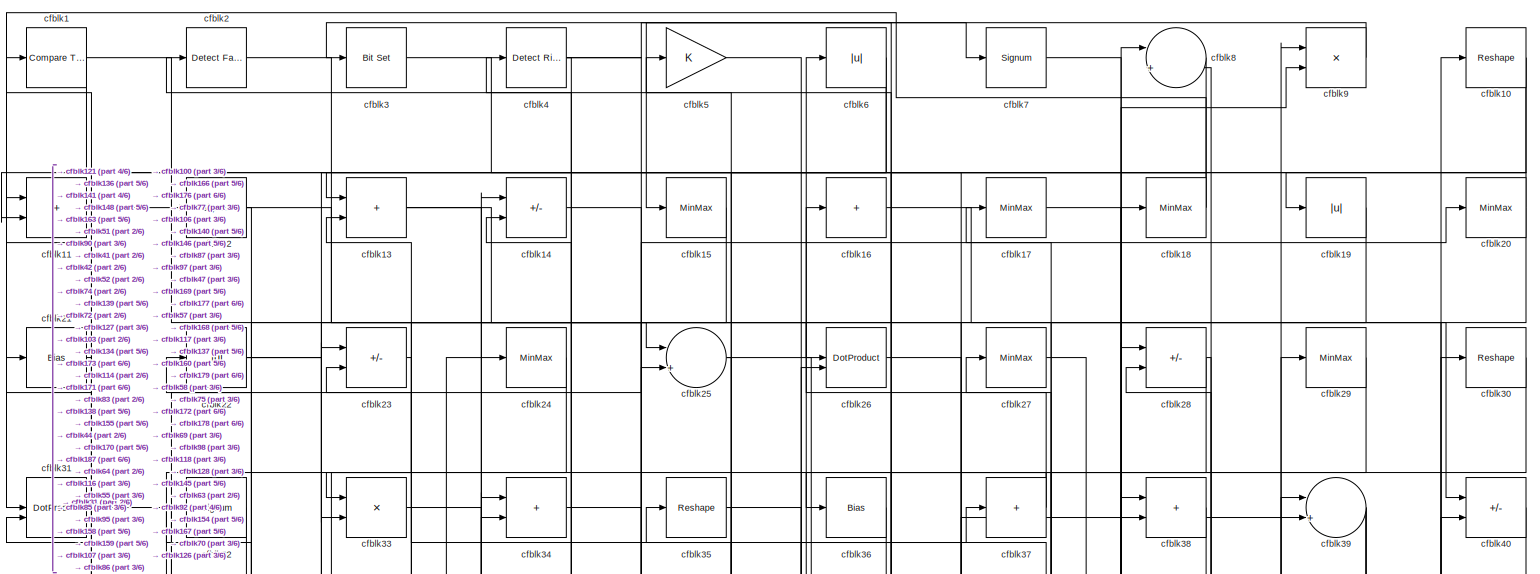
[diagram: root canvas - part 1/6, full width, top band]
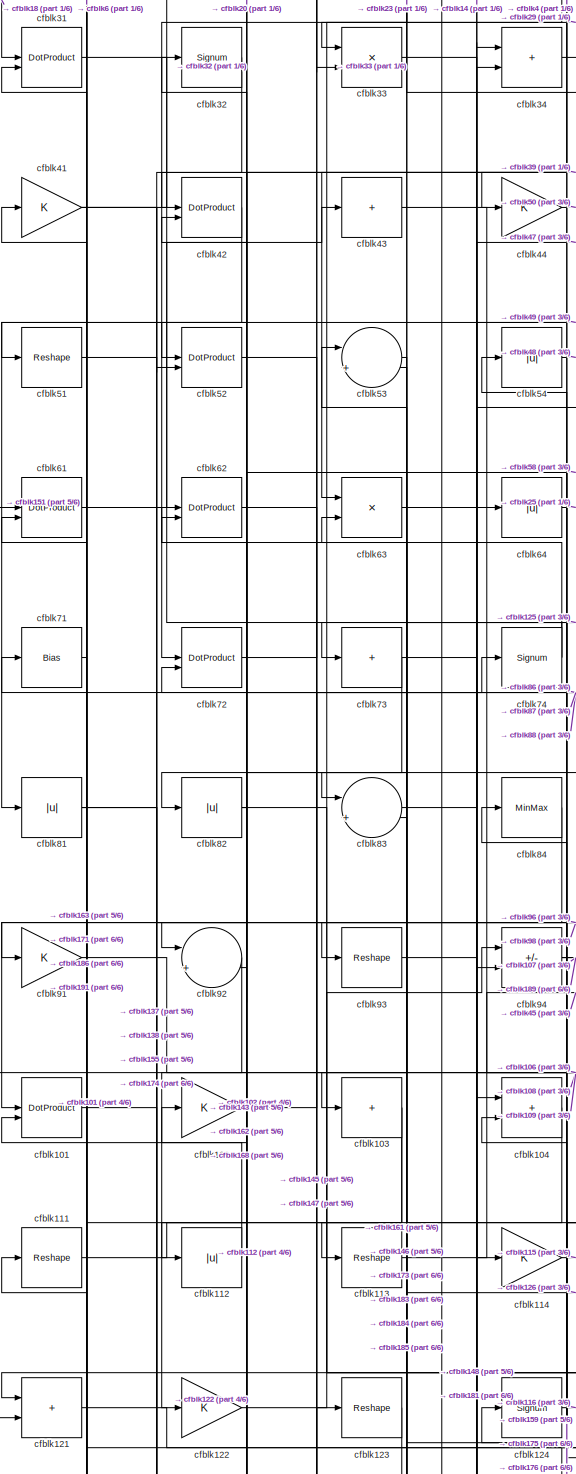
[diagram: root canvas - part 2/6, middle left region]
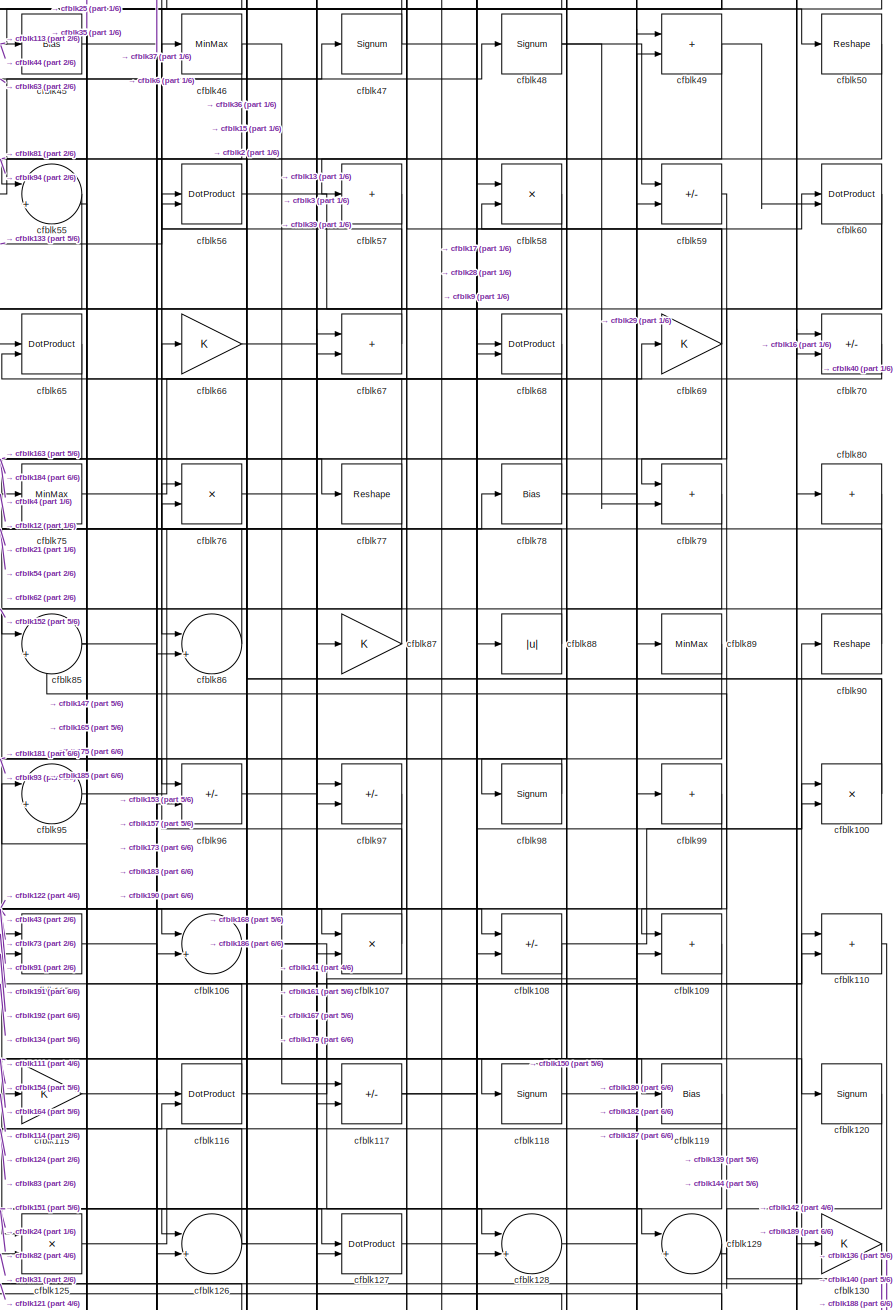
[diagram: root canvas - part 3/6, middle right region]
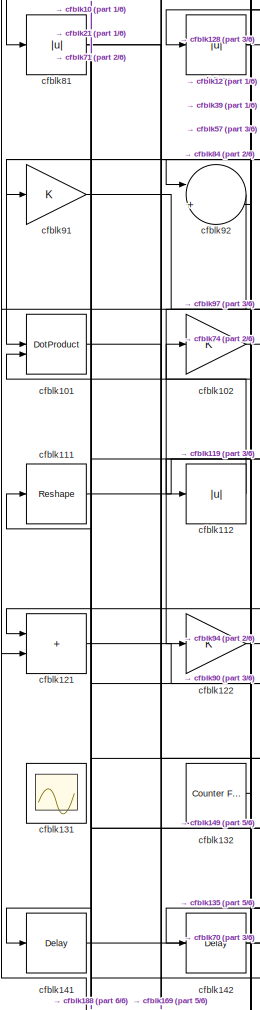
[diagram: root canvas - part 4/6, middle left region]
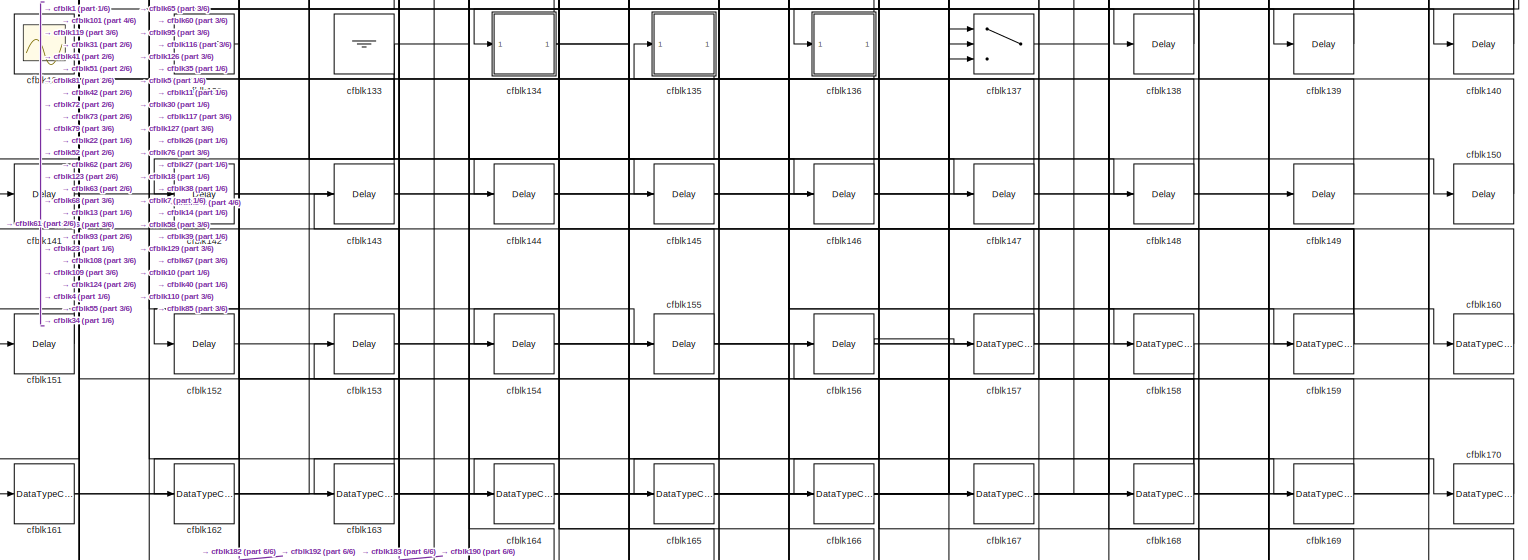
[diagram: root canvas - part 5/6, full width, bottom band]
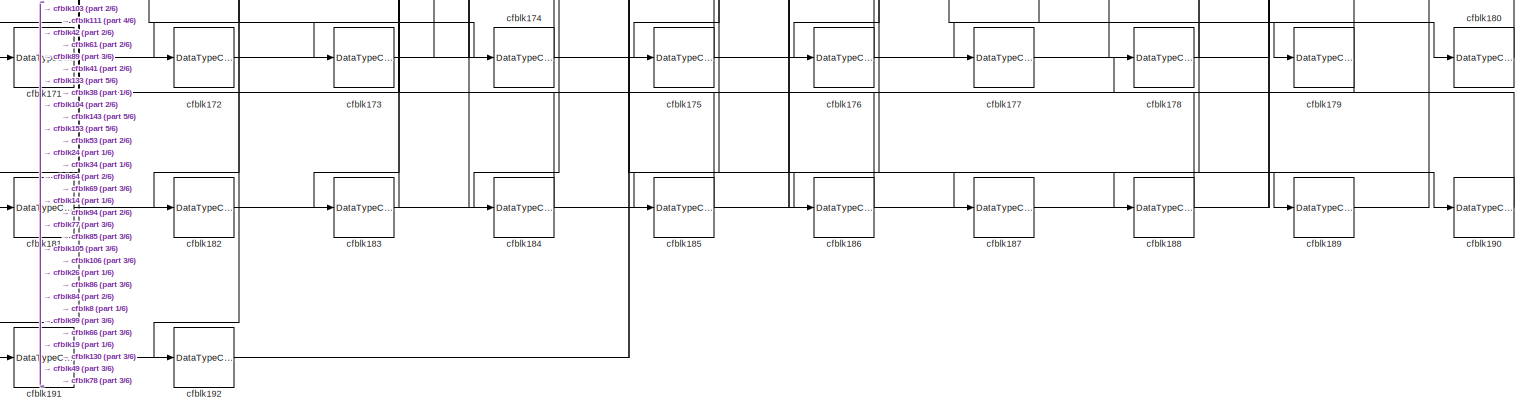
[diagram: root canvas - part 6/6, full width, bottom band]
MODEL slx_e3b1f6928810
KIND model
CONFIG AbsTol = auto
CONFIG EnableMultiTasking = off
CONFIG FixedStep = auto
CONFIG MaxStep = auto
CONFIG MinStep = auto
CONFIG RelTol = 1e-3
CONFIG SampleTimeConstraint = Unconstrained
CONFIG SolverName = VariableStepAuto
CONFIG StartTime = 0.0
CONFIG StopTime = 10.0
BLOCK [Reference] cfblk1  REF=hdlsllib/Logic and Bit
Operations/Compare
To Zero
  SourceBlock = hdlsllib/Logic and Bit\nOperations/Compare\nTo Zero
  SourceType = Compare To Zero
BLOCK [Reshape] cfblk10
BLOCK [Product] cfblk100
  Inputs = */
  RndMeth = Zero
  SaturateOnIntegerOverflow = on
BLOCK [DotProduct] cfblk101
  OutDataTypeStr = Inherit: Inherit via internal rule
BLOCK [Gain] cfblk102
BLOCK [Sum] cfblk103
  IconShape = rectangular
  Inputs = +
BLOCK [Sum] cfblk104
  IconShape = rectangular
BLOCK [Product] cfblk105
  Inputs = */
  RndMeth = Zero
  SaturateOnIntegerOverflow = on
BLOCK [Sum] cfblk106
  Inputs = |++
BLOCK [Product] cfblk107
  Inputs = */
  RndMeth = Zero
  SaturateOnIntegerOverflow = on
BLOCK [Sum] cfblk108
  IconShape = rectangular
  Inputs = +-
BLOCK [Sum] cfblk109
  IconShape = rectangular
BLOCK [Sum] cfblk11
  IconShape = rectangular
BLOCK [Sum] cfblk110
  IconShape = rectangular
BLOCK [Reshape] cfblk111
BLOCK [Abs] cfblk112
  SaturateOnIntegerOverflow = off
BLOCK [Reshape] cfblk113
BLOCK [Gain] cfblk114
BLOCK [Gain] cfblk115
BLOCK [DotProduct] cfblk116
  OutDataTypeStr = Inherit: Inherit via internal rule
BLOCK [Sum] cfblk117
  IconShape = rectangular
  Inputs = +-
BLOCK [Signum] cfblk118
BLOCK [Bias] cfblk119
  Bias = 0.0
  SaturateOnIntegerOverflow = off
BLOCK [Signum] cfblk12
BLOCK [Signum] cfblk120
BLOCK [Sum] cfblk121
  IconShape = rectangular
BLOCK [Gain] cfblk122
BLOCK [Reshape] cfblk123
BLOCK [Signum] cfblk124
BLOCK [Product] cfblk125
  Inputs = */
  RndMeth = Zero
  SaturateOnIntegerOverflow = on
BLOCK [Sum] cfblk126
  Inputs = |++
BLOCK [DotProduct] cfblk127
  OutDataTypeStr = Inherit: Inherit via internal rule
BLOCK [Sum] cfblk128
  Inputs = |++
BLOCK [Sum] cfblk129
  Inputs = |++
BLOCK [Sum] cfblk13
  IconShape = rectangular
BLOCK [Gain] cfblk130
BLOCK [Scope] cfblk131
  Floating = on
  NumInputPorts = 1
  ScopeSpecificationString = Simulink.scopes.TimeScopeBlockCfg('CurrentConfiguration', extmgr.ConfigurationSet(extmgr.Configuration('Core','General UI',true,'FigureColor',[0.156862745098039 0.156862745098039 0.156862745098039]),extmgr.Configuration('Core','Source UI',true),extmgr.Configuration('Sources','WiredSimulink',true,'DataLoggingVariableName','ScopeData1','DataLoggingSaveFormat','StructureWithTime','DataLoggingLimitDat...<+2713ch>
BLOCK [Reference] cfblk132  REF=hdlsllib/Sources/Counter
Free-Running
  SourceBlock = hdlsllib/Sources/Counter\nFree-Running
  SourceType = Counter Free-Running
BLOCK [Ground] cfblk133
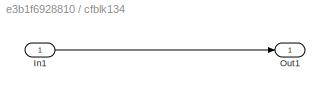
BLOCK [SubSystem] cfblk134
  LibrarySourceBlock = hdlsllib/Ports &\nSubsystems/Subsystem
BLOCK [Inport] cfblk134/In1
BLOCK [Outport] cfblk134/Out1
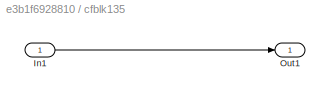
BLOCK [SubSystem] cfblk135
  LibrarySourceBlock = hdlsllib/Ports &\nSubsystems/Subsystem
BLOCK [Inport] cfblk135/In1
BLOCK [Outport] cfblk135/Out1
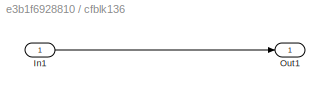
BLOCK [SubSystem] cfblk136
  LibrarySourceBlock = hdlsllib/Ports &\nSubsystems/Subsystem
BLOCK [Inport] cfblk136/In1
BLOCK [Outport] cfblk136/Out1
BLOCK [Switch] cfblk137
  InputSameDT = off
  SaturateOnIntegerOverflow = off
BLOCK [Delay] cfblk138
  InputPortMap = u0
  SampleTime = 1
BLOCK [Delay] cfblk139
  InputPortMap = u0
  SampleTime = 1
BLOCK [Sum] cfblk14
  IconShape = rectangular
  Inputs = +-
BLOCK [Delay] cfblk140
  InputPortMap = u0
  SampleTime = 1
BLOCK [Delay] cfblk141
  InputPortMap = u0
  SampleTime = 1
BLOCK [Delay] cfblk142
  InputPortMap = u0
  SampleTime = 1
BLOCK [Delay] cfblk143
  InputPortMap = u0
  SampleTime = 1
BLOCK [Delay] cfblk144
  InputPortMap = u0
  SampleTime = 1
BLOCK [Delay] cfblk145
  InputPortMap = u0
  SampleTime = 1
BLOCK [Delay] cfblk146
  InputPortMap = u0
  SampleTime = 1
BLOCK [Delay] cfblk147
  InputPortMap = u0
  SampleTime = 1
BLOCK [Delay] cfblk148
  InputPortMap = u0
  SampleTime = 1
BLOCK [Delay] cfblk149
  InputPortMap = u0
  SampleTime = 1
BLOCK [MinMax] cfblk15
BLOCK [Delay] cfblk150
  InputPortMap = u0
  SampleTime = 1
BLOCK [Delay] cfblk151
  InputPortMap = u0
  SampleTime = 1
BLOCK [Delay] cfblk152
  InputPortMap = u0
  SampleTime = 1
BLOCK [Delay] cfblk153
  InputPortMap = u0
  SampleTime = 1
BLOCK [Delay] cfblk154
  InputPortMap = u0
  SampleTime = 1
BLOCK [Delay] cfblk155
  InputPortMap = u0
  SampleTime = 1
BLOCK [Delay] cfblk156
  InputPortMap = u0
  SampleTime = 1
BLOCK [DataTypeConversion] cfblk157
  OutDataTypeStr = uint8
  RndMeth = Floor
  SaturateOnIntegerOverflow = off
BLOCK [DataTypeConversion] cfblk158
  OutDataTypeStr = uint8
  RndMeth = Floor
  SaturateOnIntegerOverflow = off
BLOCK [DataTypeConversion] cfblk159
  RndMeth = Floor
  SaturateOnIntegerOverflow = off
BLOCK [Sum] cfblk16
  IconShape = rectangular
  Inputs = +
BLOCK [DataTypeConversion] cfblk160
  OutDataTypeStr = uint8
  RndMeth = Floor
  SaturateOnIntegerOverflow = off
BLOCK [DataTypeConversion] cfblk161
  RndMeth = Floor
  SaturateOnIntegerOverflow = off
BLOCK [DataTypeConversion] cfblk162
  OutDataTypeStr = uint8
  RndMeth = Floor
  SaturateOnIntegerOverflow = off
BLOCK [DataTypeConversion] cfblk163
  RndMeth = Floor
  SaturateOnIntegerOverflow = off
BLOCK [DataTypeConversion] cfblk164
  OutDataTypeStr = uint8
  RndMeth = Floor
  SaturateOnIntegerOverflow = off
BLOCK [DataTypeConversion] cfblk165
  OutDataTypeStr = uint8
  RndMeth = Floor
  SaturateOnIntegerOverflow = off
BLOCK [DataTypeConversion] cfblk166
  RndMeth = Floor
  SaturateOnIntegerOverflow = off
BLOCK [DataTypeConversion] cfblk167
  OutDataTypeStr = uint8
  RndMeth = Floor
  SaturateOnIntegerOverflow = off
BLOCK [DataTypeConversion] cfblk168
  RndMeth = Floor
  SaturateOnIntegerOverflow = off
BLOCK [DataTypeConversion] cfblk169
  OutDataTypeStr = uint8
  RndMeth = Floor
  SaturateOnIntegerOverflow = off
BLOCK [MinMax] cfblk17
BLOCK [DataTypeConversion] cfblk170
  OutDataTypeStr = uint8
  RndMeth = Floor
  SaturateOnIntegerOverflow = off
BLOCK [DataTypeConversion] cfblk171
  OutDataTypeStr = uint8
  RndMeth = Floor
  SaturateOnIntegerOverflow = off
BLOCK [DataTypeConversion] cfblk172
  OutDataTypeStr = uint8
  RndMeth = Floor
  SaturateOnIntegerOverflow = off
BLOCK [DataTypeConversion] cfblk173
  RndMeth = Floor
  SaturateOnIntegerOverflow = off
BLOCK [DataTypeConversion] cfblk174
  OutDataTypeStr = uint8
  RndMeth = Floor
  SaturateOnIntegerOverflow = off
BLOCK [DataTypeConversion] cfblk175
  OutDataTypeStr = uint8
  RndMeth = Floor
  SaturateOnIntegerOverflow = off
BLOCK [DataTypeConversion] cfblk176
  OutDataTypeStr = uint8
  RndMeth = Floor
  SaturateOnIntegerOverflow = off
BLOCK [DataTypeConversion] cfblk177
  OutDataTypeStr = uint8
  RndMeth = Floor
  SaturateOnIntegerOverflow = off
BLOCK [DataTypeConversion] cfblk178
  OutDataTypeStr = uint8
  RndMeth = Floor
  SaturateOnIntegerOverflow = off
BLOCK [DataTypeConversion] cfblk179
  RndMeth = Floor
  SaturateOnIntegerOverflow = off
BLOCK [MinMax] cfblk18
BLOCK [DataTypeConversion] cfblk180
  OutDataTypeStr = uint8
  RndMeth = Floor
  SaturateOnIntegerOverflow = off
BLOCK [DataTypeConversion] cfblk181
  RndMeth = Floor
  SaturateOnIntegerOverflow = off
BLOCK [DataTypeConversion] cfblk182
  OutDataTypeStr = uint8
  RndMeth = Floor
  SaturateOnIntegerOverflow = off
BLOCK [DataTypeConversion] cfblk183
  RndMeth = Floor
  SaturateOnIntegerOverflow = off
BLOCK [DataTypeConversion] cfblk184
  OutDataTypeStr = uint8
  RndMeth = Floor
  SaturateOnIntegerOverflow = off
BLOCK [DataTypeConversion] cfblk185
  OutDataTypeStr = uint8
  RndMeth = Floor
  SaturateOnIntegerOverflow = off
BLOCK [DataTypeConversion] cfblk186
  OutDataTypeStr = uint8
  RndMeth = Floor
  SaturateOnIntegerOverflow = off
BLOCK [DataTypeConversion] cfblk187
  OutDataTypeStr = uint8
  RndMeth = Floor
  SaturateOnIntegerOverflow = off
BLOCK [DataTypeConversion] cfblk188
  OutDataTypeStr = uint8
  RndMeth = Floor
  SaturateOnIntegerOverflow = off
BLOCK [DataTypeConversion] cfblk189
  OutDataTypeStr = uint8
  RndMeth = Floor
  SaturateOnIntegerOverflow = off
BLOCK [Abs] cfblk19
  SaturateOnIntegerOverflow = off
BLOCK [DataTypeConversion] cfblk190
  OutDataTypeStr = uint8
  RndMeth = Floor
  SaturateOnIntegerOverflow = off
BLOCK [DataTypeConversion] cfblk191
  OutDataTypeStr = uint8
  RndMeth = Floor
  SaturateOnIntegerOverflow = off
BLOCK [DataTypeConversion] cfblk192
  OutDataTypeStr = uint8
  RndMeth = Floor
  SaturateOnIntegerOverflow = off
BLOCK [Reference] cfblk2  REF=hdlsllib/Logic and Bit
Operations/Detect Fall
Negative
  SourceBlock = hdlsllib/Logic and Bit\nOperations/Detect Fall\nNegative
  SourceType = Detect Fall Negative
BLOCK [MinMax] cfblk20
BLOCK [Bias] cfblk21
  Bias = 0.0
  SaturateOnIntegerOverflow = off
BLOCK [Abs] cfblk22
  SaturateOnIntegerOverflow = off
BLOCK [Sum] cfblk23
  IconShape = rectangular
  Inputs = +-
BLOCK [MinMax] cfblk24
BLOCK [Sum] cfblk25
  Inputs = |++
BLOCK [DotProduct] cfblk26
  OutDataTypeStr = Inherit: Inherit via internal rule
BLOCK [MinMax] cfblk27
BLOCK [Sum] cfblk28
  IconShape = rectangular
  Inputs = +-
BLOCK [MinMax] cfblk29
BLOCK [Reference] cfblk3  REF=simulink/Logic and Bit
Operations/Bit Set
  LibrarySourceBlock = hdlsllib/Logic and Bit\nOperations/Bit Set
  SourceBlock = simulink/Logic and Bit\nOperations/Bit Set
  SourceType = Bit Set
BLOCK [Reshape] cfblk30
BLOCK [DotProduct] cfblk31
  OutDataTypeStr = Inherit: Inherit via internal rule
BLOCK [Signum] cfblk32
BLOCK [Product] cfblk33
  Inputs = */
  RndMeth = Zero
  SaturateOnIntegerOverflow = on
BLOCK [Sum] cfblk34
  IconShape = rectangular
BLOCK [Reshape] cfblk35
BLOCK [Bias] cfblk36
  Bias = 0.0
  SaturateOnIntegerOverflow = off
BLOCK [Sum] cfblk37
  IconShape = rectangular
  Inputs = +
BLOCK [Sum] cfblk38
  IconShape = rectangular
BLOCK [Sum] cfblk39
  Inputs = |++
BLOCK [Reference] cfblk4  REF=hdlsllib/Logic and Bit
Operations/Detect Rise
Positive
  SourceBlock = hdlsllib/Logic and Bit\nOperations/Detect Rise\nPositive
  SourceType = Detect Rise Positive
BLOCK [Sum] cfblk40
  IconShape = rectangular
  Inputs = +-
BLOCK [Gain] cfblk41
BLOCK [DotProduct] cfblk42
  OutDataTypeStr = Inherit: Inherit via internal rule
BLOCK [Sum] cfblk43
  IconShape = rectangular
  Inputs = +
BLOCK [Gain] cfblk44
BLOCK [Bias] cfblk45
  Bias = 0.0
  SaturateOnIntegerOverflow = off
BLOCK [MinMax] cfblk46
BLOCK [Signum] cfblk47
BLOCK [Signum] cfblk48
BLOCK [Sum] cfblk49
  IconShape = rectangular
BLOCK [Gain] cfblk5
BLOCK [Reshape] cfblk50
BLOCK [Reshape] cfblk51
BLOCK [DotProduct] cfblk52
  OutDataTypeStr = Inherit: Inherit via internal rule
BLOCK [Sum] cfblk53
  Inputs = |++
BLOCK [Abs] cfblk54
  SaturateOnIntegerOverflow = off
BLOCK [Sum] cfblk55
  Inputs = |++
BLOCK [DotProduct] cfblk56
  OutDataTypeStr = Inherit: Inherit via internal rule
BLOCK [Sum] cfblk57
  IconShape = rectangular
  Inputs = +
BLOCK [Product] cfblk58
  Inputs = */
  RndMeth = Zero
  SaturateOnIntegerOverflow = on
BLOCK [Sum] cfblk59
  IconShape = rectangular
  Inputs = +-
BLOCK [Abs] cfblk6
  SaturateOnIntegerOverflow = off
BLOCK [DotProduct] cfblk60
  OutDataTypeStr = Inherit: Inherit via internal rule
BLOCK [DotProduct] cfblk61
  OutDataTypeStr = Inherit: Inherit via internal rule
BLOCK [DotProduct] cfblk62
  OutDataTypeStr = Inherit: Inherit via internal rule
BLOCK [Product] cfblk63
  Inputs = */
  RndMeth = Zero
  SaturateOnIntegerOverflow = on
BLOCK [Abs] cfblk64
  SaturateOnIntegerOverflow = off
BLOCK [DotProduct] cfblk65
  OutDataTypeStr = Inherit: Inherit via internal rule
BLOCK [Gain] cfblk66
BLOCK [Sum] cfblk67
  IconShape = rectangular
BLOCK [DotProduct] cfblk68
  OutDataTypeStr = Inherit: Inherit via internal rule
BLOCK [Gain] cfblk69
BLOCK [Signum] cfblk7
BLOCK [Sum] cfblk70
  IconShape = rectangular
  Inputs = +-
BLOCK [Bias] cfblk71
  Bias = 0.0
  SaturateOnIntegerOverflow = off
BLOCK [DotProduct] cfblk72
  OutDataTypeStr = Inherit: Inherit via internal rule
BLOCK [Sum] cfblk73
  IconShape = rectangular
  Inputs = +
BLOCK [Signum] cfblk74
BLOCK [MinMax] cfblk75
BLOCK [Product] cfblk76
  Inputs = */
  RndMeth = Zero
  SaturateOnIntegerOverflow = on
BLOCK [Reshape] cfblk77
BLOCK [Bias] cfblk78
  Bias = 0.0
  SaturateOnIntegerOverflow = off
BLOCK [Sum] cfblk79
  IconShape = rectangular
BLOCK [Sum] cfblk8
  Inputs = |++
BLOCK [Sum] cfblk80
  IconShape = rectangular
  Inputs = +
BLOCK [Abs] cfblk81
  SaturateOnIntegerOverflow = off
BLOCK [Abs] cfblk82
  SaturateOnIntegerOverflow = off
BLOCK [Sum] cfblk83
  Inputs = |++
BLOCK [MinMax] cfblk84
BLOCK [Sum] cfblk85
  Inputs = |++
BLOCK [Sum] cfblk86
  Inputs = |++
BLOCK [Gain] cfblk87
BLOCK [Abs] cfblk88
  SaturateOnIntegerOverflow = off
BLOCK [MinMax] cfblk89
BLOCK [Product] cfblk9
  Inputs = */
  RndMeth = Zero
  SaturateOnIntegerOverflow = on
BLOCK [Reshape] cfblk90
BLOCK [Gain] cfblk91
BLOCK [Sum] cfblk92
  Inputs = |++
BLOCK [Reshape] cfblk93
BLOCK [Sum] cfblk94
  IconShape = rectangular
  Inputs = +-
BLOCK [Sum] cfblk95
  Inputs = |++
BLOCK [Sum] cfblk96
  IconShape = rectangular
  Inputs = +-
BLOCK [Sum] cfblk97
  IconShape = rectangular
  Inputs = +-
BLOCK [Signum] cfblk98
BLOCK [Sum] cfblk99
  IconShape = rectangular
  Inputs = +
NET cfblk100:1 -> cfblk2:1, cfblk76:1
LINE cfblk101:1 -> cfblk169:1
LINE cfblk102:1 -> cfblk74:1
NET cfblk103:1 -> cfblk113:1, cfblk191:1
LINE cfblk104:1 -> cfblk173:1
LINE cfblk105:1 -> cfblk190:1
NET cfblk106:1 -> cfblk129:1, cfblk39:2
LINE cfblk107:1 -> cfblk6:1
NET cfblk108:1 -> cfblk100:1, cfblk154:1
LINE cfblk109:1 -> cfblk164:1
NET cfblk10:1 -> cfblk121:1, cfblk33:2
LINE cfblk110:1 -> cfblk136:1
LINE cfblk111:1 -> cfblk119:1
LINE cfblk112:1 -> cfblk71:1
LINE cfblk113:1 -> cfblk45:1
LINE cfblk114:1 -> cfblk115:1
LINE cfblk115:1 -> cfblk110:2
NET cfblk116:1 -> cfblk35:1, cfblk59:2
NET cfblk117:1 -> cfblk100:2, cfblk9:2
LINE cfblk118:1 -> cfblk9:1
LINE cfblk119:1 -> cfblk151:1
LINE cfblk11:1 -> cfblk12:1
LINE cfblk120:1 -> cfblk129:2
LINE cfblk121:1 -> cfblk90:1
LINE cfblk122:1 -> cfblk94:1
LINE cfblk123:1 -> cfblk161:1
LINE cfblk124:1 -> cfblk116:2
LINE cfblk125:1 -> cfblk80:1
NET cfblk126:1 -> cfblk56:1, cfblk67:2, cfblk83:2
LINE cfblk127:1 -> cfblk60:1
LINE cfblk128:1 -> cfblk29:1
LINE cfblk129:1 -> cfblk144:1
NET cfblk12:1 -> cfblk75:1, cfblk92:2
LINE cfblk130:1 -> cfblk188:1
LINE cfblk132:1 -> cfblk102:1
NET cfblk133:1 -> cfblk182:1, cfblk192:1, cfblk56:2
LINE cfblk134/In1:1 -> cfblk134/Out1:1
NET cfblk134:1 -> cfblk110:1, cfblk150:1, cfblk23:2
LINE cfblk135/In1:1 -> cfblk135/Out1:1
LINE cfblk135:1 -> cfblk142:1
LINE cfblk136/In1:1 -> cfblk136/Out1:1
NET cfblk136:1 -> cfblk11:1, cfblk135:1
LINE cfblk137:1 -> cfblk18:1
LINE cfblk138:1 -> cfblk14:2
LINE cfblk139:1 -> cfblk67:1
NET cfblk13:1 -> cfblk146:1, cfblk87:1
LINE cfblk140:1 -> cfblk85:2
LINE cfblk141:1 -> cfblk97:1
LINE cfblk142:1 -> cfblk70:1
LINE cfblk143:1 -> cfblk72:2
LINE cfblk144:1 -> cfblk65:1
LINE cfblk145:1 -> cfblk39:1
LINE cfblk146:1 -> cfblk63:2
LINE cfblk147:1 -> cfblk95:1
LINE cfblk148:1 -> cfblk1:1
LINE cfblk149:1 -> cfblk101:2
LINE cfblk14:1 -> cfblk187:1
LINE cfblk150:1 -> cfblk58:2
LINE cfblk151:1 -> cfblk61:1
LINE cfblk152:1 -> cfblk108:2
LINE cfblk153:1 -> cfblk126:2
LINE cfblk154:1 -> cfblk40:2
LINE cfblk155:1 -> cfblk4:1
LINE cfblk156:1 -> cfblk157:1
LINE cfblk157:1 -> cfblk116:1
LINE cfblk158:1 -> cfblk156:1
NET cfblk159:1 -> cfblk124:1, cfblk137:1, cfblk41:1
LINE cfblk15:1 -> cfblk33:1
LINE cfblk160:1 -> cfblk5:1
NET cfblk161:1 -> cfblk127:2, cfblk137:3
LINE cfblk162:1 -> cfblk123:1
NET cfblk163:1 -> cfblk117:2, cfblk31:2, cfblk38:2
LINE cfblk164:1 -> cfblk68:1
LINE cfblk165:1 -> cfblk68:2
NET cfblk166:1 -> cfblk10:1, cfblk149:1
LINE cfblk167:1 -> cfblk30:1
NET cfblk168:1 -> cfblk42:2, cfblk76:2
LINE cfblk169:1 -> cfblk27:1
LINE cfblk16:1 -> cfblk70:2
LINE cfblk170:1 -> cfblk22:1
LINE cfblk171:1 -> cfblk34:1
LINE cfblk172:1 -> cfblk34:2
NET cfblk173:1 -> cfblk24:1, cfblk26:2, cfblk49:1
LINE cfblk174:1 -> cfblk104:1
LINE cfblk175:1 -> cfblk104:2
LINE cfblk176:1 -> cfblk84:1
LINE cfblk177:1 -> cfblk8:1
LINE cfblk178:1 -> cfblk8:2
NET cfblk179:1 -> cfblk178:1, cfblk38:1
LINE cfblk17:1 -> cfblk58:1
LINE cfblk180:1 -> cfblk66:1
NET cfblk181:1 -> cfblk49:2, cfblk64:1
LINE cfblk182:1 -> cfblk89:1
NET cfblk183:1 -> cfblk106:2, cfblk153:1, cfblk86:2
LINE cfblk184:1 -> cfblk53:1
LINE cfblk185:1 -> cfblk53:2
LINE cfblk186:1 -> cfblk61:2
LINE cfblk187:1 -> cfblk99:1
LINE cfblk188:1 -> cfblk111:1
LINE cfblk189:1 -> cfblk130:1
NET cfblk18:1 -> cfblk13:1, cfblk31:1
LINE cfblk190:1 -> cfblk143:1
LINE cfblk191:1 -> cfblk105:1
LINE cfblk192:1 -> cfblk105:2
LINE cfblk19:1 -> cfblk177:1
NET cfblk1:1 -> cfblk11:2, cfblk40:1
NET cfblk20:1 -> cfblk19:1, cfblk52:1
LINE cfblk21:1 -> cfblk141:1
NET cfblk22:1 -> cfblk139:1, cfblk26:1
LINE cfblk23:1 -> cfblk103:1
LINE cfblk24:1 -> cfblk127:1
NET cfblk25:1 -> cfblk107:2, cfblk85:1
LINE cfblk26:1 -> cfblk140:1
LINE cfblk27:1 -> cfblk168:1
NET cfblk28:1 -> cfblk57:1, cfblk98:1
LINE cfblk29:1 -> cfblk72:1
LINE cfblk2:1 -> cfblk25:1
LINE cfblk30:1 -> cfblk166:1
LINE cfblk31:1 -> cfblk125:2
LINE cfblk32:1 -> cfblk42:1
LINE cfblk33:1 -> cfblk114:1
LINE cfblk34:1 -> cfblk170:1
NET cfblk35:1 -> cfblk158:1, cfblk55:1
LINE cfblk36:1 -> cfblk86:1
NET cfblk37:1 -> cfblk16:1, cfblk36:1
LINE cfblk38:1 -> cfblk172:1
NET cfblk39:1 -> cfblk52:2, cfblk63:1, cfblk92:1
LINE cfblk3:1 -> cfblk97:2
LINE cfblk40:1 -> cfblk126:1
NET cfblk41:1 -> cfblk155:1, cfblk174:1, cfblk20:1
LINE cfblk42:1 -> cfblk171:1
LINE cfblk43:1 -> cfblk108:1
LINE cfblk44:1 -> cfblk50:1
LINE cfblk45:1 -> cfblk120:1
NET cfblk46:1 -> cfblk117:1, cfblk96:2
NET cfblk47:1 -> cfblk13:2, cfblk88:1
NET cfblk48:1 -> cfblk59:1, cfblk79:2
NET cfblk49:1 -> cfblk60:2, cfblk81:1
NET cfblk4:1 -> cfblk44:1, cfblk77:1, cfblk7:1
LINE cfblk50:1 -> cfblk94:2
LINE cfblk51:1 -> cfblk138:1
LINE cfblk52:1 -> cfblk147:1
LINE cfblk53:1 -> cfblk183:1
LINE cfblk54:1 -> cfblk48:1
LINE cfblk55:1 -> cfblk134:1
LINE cfblk56:1 -> cfblk128:2
LINE cfblk57:1 -> cfblk82:1
LINE cfblk58:1 -> cfblk83:1
LINE cfblk59:1 -> cfblk79:1
LINE cfblk5:1 -> cfblk159:1
NET cfblk60:1 -> cfblk109:1, cfblk165:1
LINE cfblk61:1 -> cfblk43:1
LINE cfblk62:1 -> cfblk145:1
LINE cfblk63:1 -> cfblk47:1
LINE cfblk64:1 -> cfblk25:2
LINE cfblk65:1 -> cfblk125:1
LINE cfblk66:1 -> cfblk179:1
LINE cfblk67:1 -> cfblk46:1
LINE cfblk68:1 -> cfblk163:1
NET cfblk69:1 -> cfblk17:1, cfblk184:1, cfblk28:2
NET cfblk6:1 -> cfblk51:1, cfblk95:2
LINE cfblk70:1 -> cfblk65:2
LINE cfblk71:1 -> cfblk91:1
LINE cfblk72:1 -> cfblk23:1
NET cfblk73:1 -> cfblk109:2, cfblk162:1
NET cfblk74:1 -> cfblk32:1, cfblk73:1
LINE cfblk75:1 -> cfblk28:1
LINE cfblk76:1 -> cfblk167:1
NET cfblk77:1 -> cfblk15:1, cfblk175:1
NET cfblk78:1 -> cfblk180:1, cfblk55:2
LINE cfblk79:1 -> cfblk152:1
LINE cfblk7:1 -> cfblk160:1
LINE cfblk80:1 -> cfblk118:1
NET cfblk81:1 -> cfblk137:2, cfblk96:1
NET cfblk82:1 -> cfblk112:1, cfblk128:1
LINE cfblk83:1 -> cfblk14:1
LINE cfblk84:1 -> cfblk101:1
NET cfblk85:1 -> cfblk185:1, cfblk37:1
LINE cfblk86:1 -> cfblk54:1
LINE cfblk87:1 -> cfblk62:2
LINE cfblk88:1 -> cfblk62:1
LINE cfblk89:1 -> cfblk181:1
LINE cfblk8:1 -> cfblk176:1
LINE cfblk90:1 -> cfblk21:1
LINE cfblk91:1 -> cfblk106:1
LINE cfblk92:1 -> cfblk121:2
LINE cfblk93:1 -> cfblk148:1
NET cfblk94:1 -> cfblk107:1, cfblk189:1
LINE cfblk95:1 -> cfblk78:1
LINE cfblk96:1 -> cfblk69:1
LINE cfblk97:1 -> cfblk122:1
LINE cfblk98:1 -> cfblk93:1
LINE cfblk99:1 -> cfblk186:1
LINE cfblk9:1 -> cfblk3:1
note: NET lines group one-source signal fan-out (src -> all destinations, sorted); 1:1 wires keep LINE
